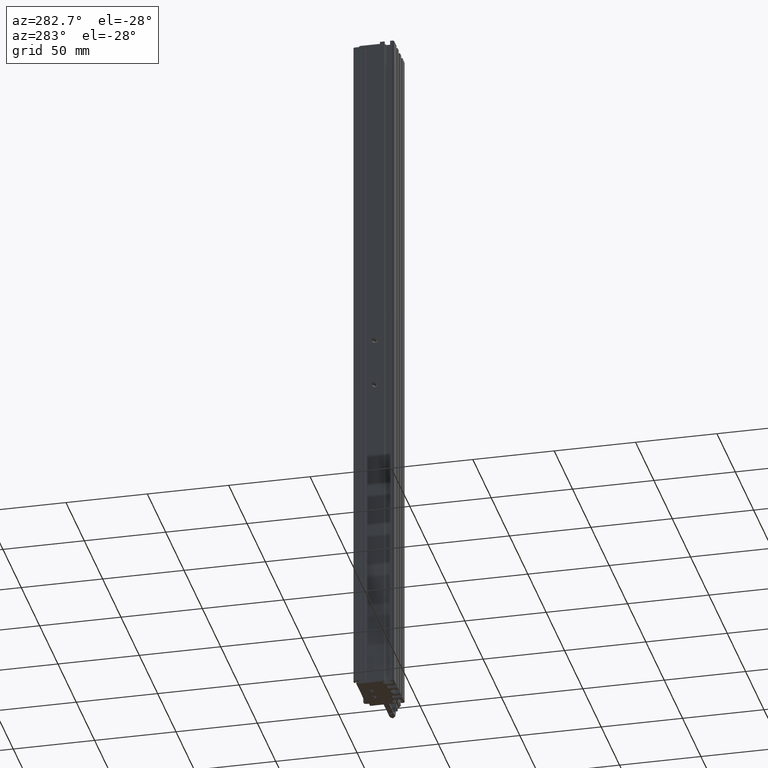
[diagram: clean part render]
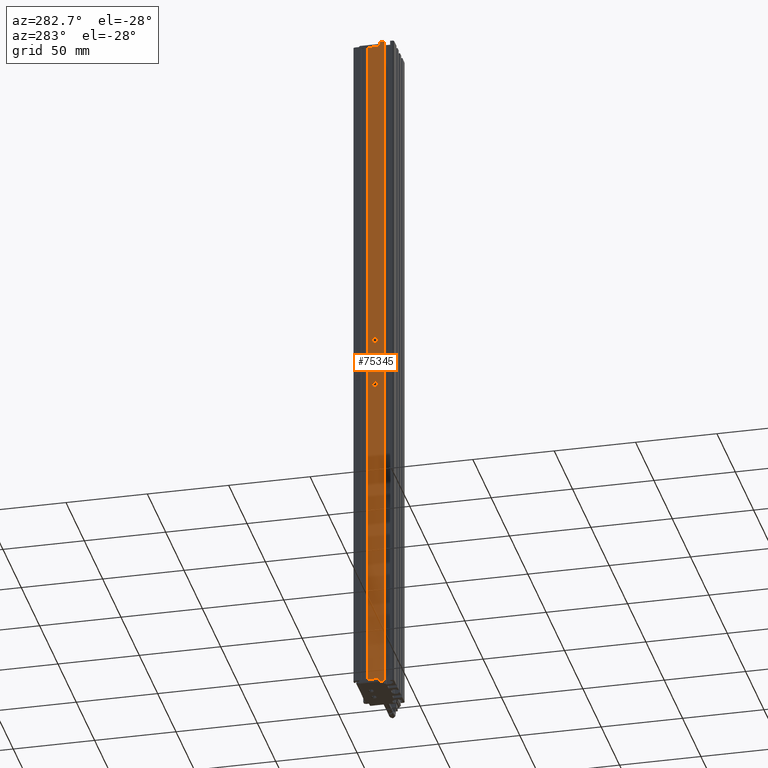
[diagram: same view with one face highlighted and labeled with its STEP entity id]
A machine part, auxiliary view. The second image highlights one B-rep face of the part: STEP entity #75345.
In plain terms, the highlighted planar face has unit normal (-1, 0, 0).
Its self-contained STEP definition (entity closure, byte-faithful):
#1333 = EDGE_CURVE ( 'NONE', #73712, #12688, #52531, .T. ) ;
#2675 = EDGE_CURVE ( 'NONE', #47387, #65483, #66401, .T. ) ;
#3006 = EDGE_LOOP ( 'NONE', ( #4485, #12993, #60392, #48872, #54776, #45673, #43017, #70091 ) ) ;
#3544 = CARTESIAN_POINT ( 'NONE',  ( 25.92537974683542100, 19.19594479660386500, 102.0000000000000000 ) ) ;
#4147 = DIRECTION ( 'NONE',  ( 0.0000000000000000000, 0.0000000000000000000, 1.000000000000000000 ) ) ;
#4485 = ORIENTED_EDGE ( 'NONE', *, *, #11789, .T. ) ;
#6143 = DIRECTION ( 'NONE',  ( 0.0000000000000000000, 0.0000000000000000000, 1.000000000000000000 ) ) ;
#7141 = VERTEX_POINT ( 'NONE', #21932 ) ;
#7768 = AXIS2_PLACEMENT_3D ( 'NONE', #51005, #14224, #57202 ) ;
#7833 = EDGE_CURVE ( 'NONE', #26769, #72054, #59006, .T. ) ;
#10085 = CARTESIAN_POINT ( 'NONE',  ( 25.92537974679222400, 22.39594479660386700, -128.1999999999266000 ) ) ;
#11789 = EDGE_CURVE ( 'NONE', #7141, #73712, #26739, .T. ) ;
#12045 = EDGE_LOOP ( 'NONE', ( #23191, #74623 ) ) ;
#12688 = VERTEX_POINT ( 'NONE', #15372 ) ;
#12993 = ORIENTED_EDGE ( 'NONE', *, *, #1333, .T. ) ;
#13549 = CARTESIAN_POINT ( 'NONE',  ( 25.92537974679222400, 22.39594479660386700, -131.8000000000734200 ) ) ;
#13785 = DIRECTION ( 'NONE',  ( -0.0000000000000000000, -1.000000000000000000, 0.0000000000000000000 ) ) ;
#14224 = DIRECTION ( 'NONE',  ( -1.000000000000000000, 0.0000000000000000000, 0.0000000000000000000 ) ) ;
#15262 = VERTEX_POINT ( 'NONE', #43726 ) ;
#15372 = CARTESIAN_POINT ( 'NONE',  ( 25.92537974683541800, 19.19594479660386500, 99.99999999999998600 ) ) ;
#17412 = VECTOR ( 'NONE', #13785, 1000.000000000000000 ) ;
#17681 = FACE_BOUND ( 'NONE', #12045, .T. ) ;
#18078 = VECTOR ( 'NONE', #79372, 1000.000000000000000 ) ;
#18757 = VECTOR ( 'NONE', #46525, 1000.000000000000000 ) ;
#19015 = CARTESIAN_POINT ( 'NONE',  ( 25.92537974683541800, 19.19594479660386500, 102.0000000000000000 ) ) ;
#20381 = CARTESIAN_POINT ( 'NONE',  ( 25.92537974683541800, 16.49594479660387200, -332.0000000000000000 ) ) ;
#20801 = VECTOR ( 'NONE', #37991, 1000.000000000000000 ) ;
#20808 = CARTESIAN_POINT ( 'NONE',  ( 25.92537974683541800, 7.083797468354437600, -330.0000000000000000 ) ) ;
#21932 = CARTESIAN_POINT ( 'NONE',  ( 25.92537974683541800, 16.49594479660387200, 102.0000000000000000 ) ) ;
#23191 = ORIENTED_EDGE ( 'NONE', *, *, #75449, .T. ) ;
#25303 = CARTESIAN_POINT ( 'NONE',  ( 25.92537974683542100, 35.69594479660387500, 99.99999999999998600 ) ) ;
#26347 = EDGE_CURVE ( 'NONE', #42133, #54078, #38396, .T. ) ;
#26721 = VERTEX_POINT ( 'NONE', #71636 ) ;
#26739 = LINE ( 'NONE', #36431, #18078 ) ;
#26769 = VERTEX_POINT ( 'NONE', #34868 ) ;
#27327 = LINE ( 'NONE', #34785, #41717 ) ;
#27657 = CARTESIAN_POINT ( 'NONE',  ( 25.92537974679222400, 22.39594479660386700, -130.0000000000000000 ) ) ;
#27920 = DIRECTION ( 'NONE',  ( 1.000000000000000000, -0.0000000000000000000, -0.0000000000000000000 ) ) ;
#28035 = AXIS2_PLACEMENT_3D ( 'NONE', #64700, #27920, #70874 ) ;
#29201 = CARTESIAN_POINT ( 'NONE',  ( 25.92537974684906700, 22.39594479660386700, -100.0000000000000000 ) ) ;
#29747 = CARTESIAN_POINT ( 'NONE',  ( 25.92537974683541800, 26.69594479660386800, -330.0000000000000000 ) ) ;
#32213 = EDGE_CURVE ( 'NONE', #71467, #15262, #42190, .T. ) ;
#33816 = DIRECTION ( 'NONE',  ( 0.0000000000000000000, 0.0000000000000000000, 1.000000000000000000 ) ) ;
#34028 = FACE_OUTER_BOUND ( 'NONE', #3006, .T. ) ;
#34785 = CARTESIAN_POINT ( 'NONE',  ( 25.92537974683541800, 16.49594479660387200, 102.0000000000000000 ) ) ;
#34868 = CARTESIAN_POINT ( 'NONE',  ( 25.92537974683541800, 19.19594479660386500, -332.0000000000000000 ) ) ;
#35112 = LINE ( 'NONE', #3544, #18757 ) ;
#35394 = DIRECTION ( 'NONE',  ( 0.0000000000000000000, 0.0000000000000000000, 1.000000000000000000 ) ) ;
#36181 = AXIS2_PLACEMENT_3D ( 'NONE', #29201, #72162, #35394 ) ;
#36245 = VECTOR ( 'NONE', #79131, 1000.000000000000000 ) ;
#36431 = CARTESIAN_POINT ( 'NONE',  ( 25.92537974683541800, 7.083797468354437600, 102.0000000000000000 ) ) ;
#37991 = DIRECTION ( 'NONE',  ( 0.0000000000000000000, 1.000000000000000000, 0.0000000000000000000 ) ) ;
#38182 = LINE ( 'NONE', #48722, #36245 ) ;
#38396 = CIRCLE ( 'NONE', #41231, 1.800000000073409500 ) ;
#40295 = CARTESIAN_POINT ( 'NONE',  ( 25.92537974683541800, 7.083797468354437600, -332.0000000000000000 ) ) ;
#41231 = AXIS2_PLACEMENT_3D ( 'NONE', #79747, #42937, #6143 ) ;
#41717 = VECTOR ( 'NONE', #4147, 1000.000000000000000 ) ;
#41973 = EDGE_CURVE ( 'NONE', #26721, #47387, #38182, .T. ) ;
#42133 = VERTEX_POINT ( 'NONE', #13549 ) ;
#42190 = CIRCLE ( 'NONE', #36181, 1.799999999989268400 ) ;
#42937 = DIRECTION ( 'NONE',  ( 1.000000000000000000, -0.0000000000000000000, -0.0000000000000000000 ) ) ;
#42959 = EDGE_CURVE ( 'NONE', #72054, #7141, #27327, .T. ) ;
#43017 = ORIENTED_EDGE ( 'NONE', *, *, #7833, .T. ) ;
#43726 = CARTESIAN_POINT ( 'NONE',  ( 25.92537974684906700, 22.39594479660386700, -101.7999999999892700 ) ) ;
#44573 = VECTOR ( 'NONE', #58526, 1000.000000000000000 ) ;
#44902 = EDGE_CURVE ( 'NONE', #12688, #26721, #69773, .T. ) ;
#45160 = EDGE_CURVE ( 'NONE', #65483, #26769, #35112, .T. ) ;
#45496 = ORIENTED_EDGE ( 'NONE', *, *, #32213, .T. ) ;
#45673 = ORIENTED_EDGE ( 'NONE', *, *, #45160, .T. ) ;
#46525 = DIRECTION ( 'NONE',  ( 0.0000000000000000000, -0.0000000000000000000, -1.000000000000000000 ) ) ;
#47014 = EDGE_LOOP ( 'NONE', ( #45496, #61991 ) ) ;
#47387 = VERTEX_POINT ( 'NONE', #29747 ) ;
#47738 = CIRCLE ( 'NONE', #28035, 1.799999999989268400 ) ;
#48722 = CARTESIAN_POINT ( 'NONE',  ( 25.92537974683541800, 26.69594479660386800, 102.0000000000000000 ) ) ;
#48872 = ORIENTED_EDGE ( 'NONE', *, *, #41973, .T. ) ;
#50577 = VECTOR ( 'NONE', #64850, 1000.000000000000000 ) ;
#51005 = CARTESIAN_POINT ( 'NONE',  ( 25.92537974683541800, 7.083797468354437600, 102.0000000000000000 ) ) ;
#52531 = LINE ( 'NONE', #64696, #50577 ) ;
#54078 = VERTEX_POINT ( 'NONE', #10085 ) ;
#54776 = ORIENTED_EDGE ( 'NONE', *, *, #2675, .T. ) ;
#56934 = PLANE ( 'NONE',  #7768 ) ;
#57202 = DIRECTION ( 'NONE',  ( 0.0000000000000000000, 0.0000000000000000000, 1.000000000000000000 ) ) ;
#57222 = AXIS2_PLACEMENT_3D ( 'NONE', #27657, #70617, #33816 ) ;
#58526 = DIRECTION ( 'NONE',  ( -0.0000000000000000000, -1.000000000000000000, 0.0000000000000000000 ) ) ;
#59006 = LINE ( 'NONE', #40295, #44573 ) ;
#60392 = ORIENTED_EDGE ( 'NONE', *, *, #44902, .T. ) ;
#61991 = ORIENTED_EDGE ( 'NONE', *, *, #69062, .T. ) ;
#64696 = CARTESIAN_POINT ( 'NONE',  ( 25.92537974683541800, 19.19594479660386500, 102.0000000000000000 ) ) ;
#64700 = CARTESIAN_POINT ( 'NONE',  ( 25.92537974684906700, 22.39594479660386700, -100.0000000000000000 ) ) ;
#64786 = FACE_BOUND ( 'NONE', #47014, .T. ) ;
#64850 = DIRECTION ( 'NONE',  ( 0.0000000000000000000, -0.0000000000000000000, -1.000000000000000000 ) ) ;
#65483 = VERTEX_POINT ( 'NONE', #68832 ) ;
#65920 = CARTESIAN_POINT ( 'NONE',  ( 25.92537974684906700, 22.39594479660386700, -98.20000000001073200 ) ) ;
#66401 = LINE ( 'NONE', #20808, #17412 ) ;
#68832 = CARTESIAN_POINT ( 'NONE',  ( 25.92537974683541800, 19.19594479660386500, -330.0000000000000000 ) ) ;
#69062 = EDGE_CURVE ( 'NONE', #15262, #71467, #47738, .T. ) ;
#69773 = LINE ( 'NONE', #25303, #20801 ) ;
#70091 = ORIENTED_EDGE ( 'NONE', *, *, #42959, .T. ) ;
#70617 = DIRECTION ( 'NONE',  ( 1.000000000000000000, -0.0000000000000000000, -0.0000000000000000000 ) ) ;
#70874 = DIRECTION ( 'NONE',  ( 0.0000000000000000000, 0.0000000000000000000, 1.000000000000000000 ) ) ;
#71467 = VERTEX_POINT ( 'NONE', #65920 ) ;
#71636 = CARTESIAN_POINT ( 'NONE',  ( 25.92537974683541800, 26.69594479660386800, 99.99999999999998600 ) ) ;
#72054 = VERTEX_POINT ( 'NONE', #20381 ) ;
#72162 = DIRECTION ( 'NONE',  ( 1.000000000000000000, -0.0000000000000000000, -0.0000000000000000000 ) ) ;
#73712 = VERTEX_POINT ( 'NONE', #19015 ) ;
#74314 = CIRCLE ( 'NONE', #57222, 1.800000000073409500 ) ;
#74623 = ORIENTED_EDGE ( 'NONE', *, *, #26347, .T. ) ;
#75345 = ADVANCED_FACE ( 'NONE', ( #34028, #64786, #17681 ), #56934, .T. ) ;
#75449 = EDGE_CURVE ( 'NONE', #54078, #42133, #74314, .T. ) ;
#79131 = DIRECTION ( 'NONE',  ( -0.0000000000000000000, -0.0000000000000000000, -1.000000000000000000 ) ) ;
#79372 = DIRECTION ( 'NONE',  ( 0.0000000000000000000, 1.000000000000000000, -0.0000000000000000000 ) ) ;
#79747 = CARTESIAN_POINT ( 'NONE',  ( 25.92537974679222400, 22.39594479660386700, -130.0000000000000000 ) ) ;